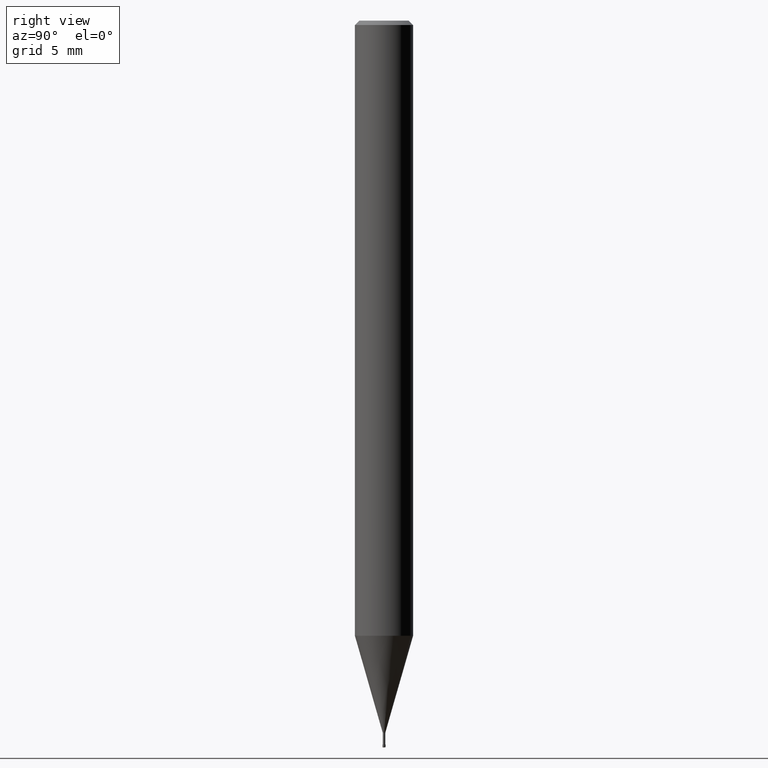
[diagram: clean part render]
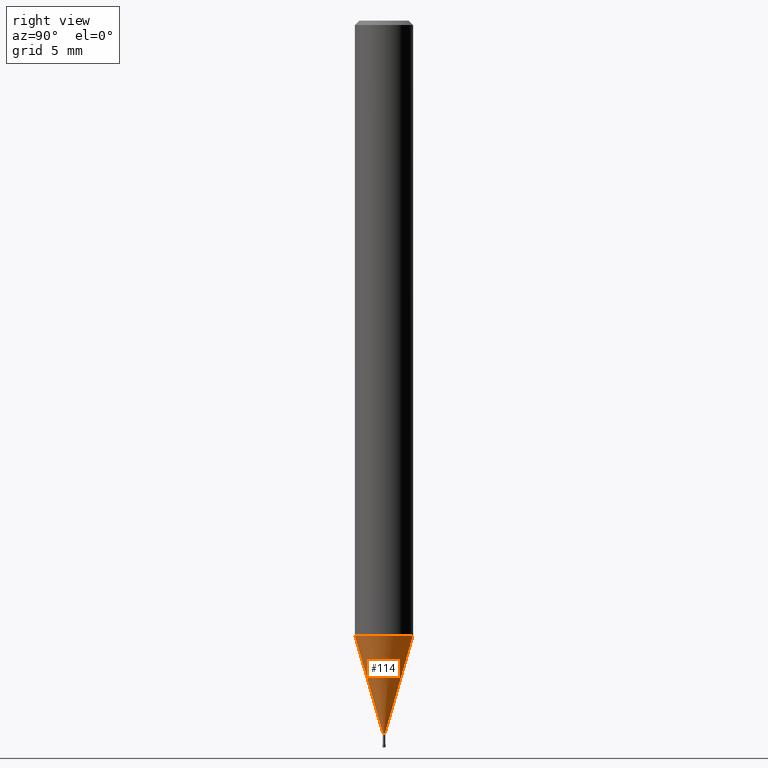
[diagram: same view with one face highlighted and labeled with its STEP entity id]
A machine part, right view. The second image highlights one B-rep face of the part: STEP entity #114.
In plain terms, the highlighted conical surface has half-angle 16.001 deg.
Its self-contained STEP definition (entity closure, byte-faithful):
#102=VERTEX_POINT('',#255);
#106=EDGE_CURVE('',#202,#232,#260,.T.);
#108=EDGE_CURVE('',#102,#128,#262,.T.);
#114=ADVANCED_FACE('',(#269),#270,.T.);
#128=VERTEX_POINT('',#288);
#178=EDGE_CURVE('',#128,#232,#345,.T.);
#192=EDGE_CURVE('',#202,#102,#360,.T.);
#202=VERTEX_POINT('',#371);
#232=VERTEX_POINT('',#403);
#255=CARTESIAN_POINT('',(0.0,0.08495,-49.0));
#260=CIRCLE('',#423,1.99995);
#262=CIRCLE('',#426,0.08495);
#269=FACE_OUTER_BOUND('',#433,.T.);
#270=CONICAL_SURFACE('',#434,1.04245,0.279268497676986);
#288=CARTESIAN_POINT('',(1.04030309757211E-017,-0.08495,-49.0));
#345=LINE('',#530,#531);
#360=LINE('',#549,#550);
#371=CARTESIAN_POINT('',(0.0,1.99995,-42.322));
#403=CARTESIAN_POINT('',(2.44915147732706E-016,-1.99995,-42.322));
#423=AXIS2_PLACEMENT_3D('',#613,#614,#615);
#426=AXIS2_PLACEMENT_3D('',#616,#617,#618);
#433=EDGE_LOOP('',(#626,#627,#628,#629));
#434=AXIS2_PLACEMENT_3D('',#630,#631,#632);
#530=CARTESIAN_POINT('',(1.27659089354214E-016,-1.04245,-45.661));
#531=VECTOR('',#746,1.0);
#549=CARTESIAN_POINT('',(-1.27659089354214E-016,1.04245,-45.661));
#550=VECTOR('',#765,1.0);
#613=CARTESIAN_POINT('',(0.0,0.0,-42.322));
#614=DIRECTION('',(0.0,0.0,-1.0));
#615=DIRECTION('',(0.0,1.0,0.0));
#616=CARTESIAN_POINT('',(0.0,0.0,-49.0));
#617=DIRECTION('',(0.0,0.0,-1.0));
#618=DIRECTION('',(0.0,1.0,0.0));
#626=ORIENTED_EDGE('',*,*,#192,.F.);
#627=ORIENTED_EDGE('',*,*,#106,.T.);
#628=ORIENTED_EDGE('',*,*,#178,.F.);
#629=ORIENTED_EDGE('',*,*,#108,.F.);
#630=CARTESIAN_POINT('',(0.0,0.0,-45.661));
#631=DIRECTION('',(-0.0,-0.0,1.0));
#632=DIRECTION('',(0.0,1.0,0.0));
#746=DIRECTION('',(3.37565876916665E-017,-0.275652560402792,0.961257335963365));
#765=DIRECTION('',(3.37565876916665E-017,-0.275652560402792,-0.961257335963365));